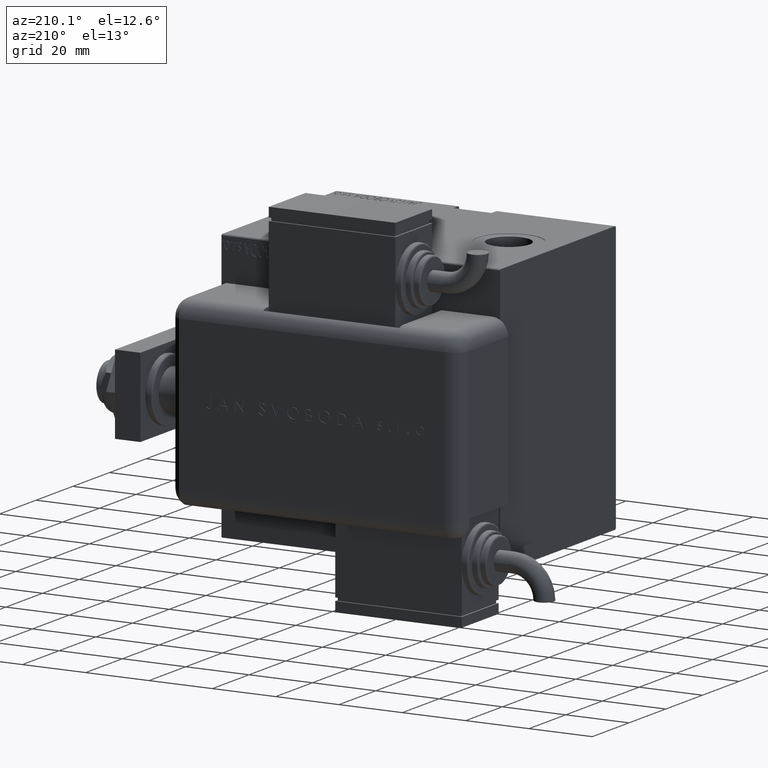
[diagram: clean part render]
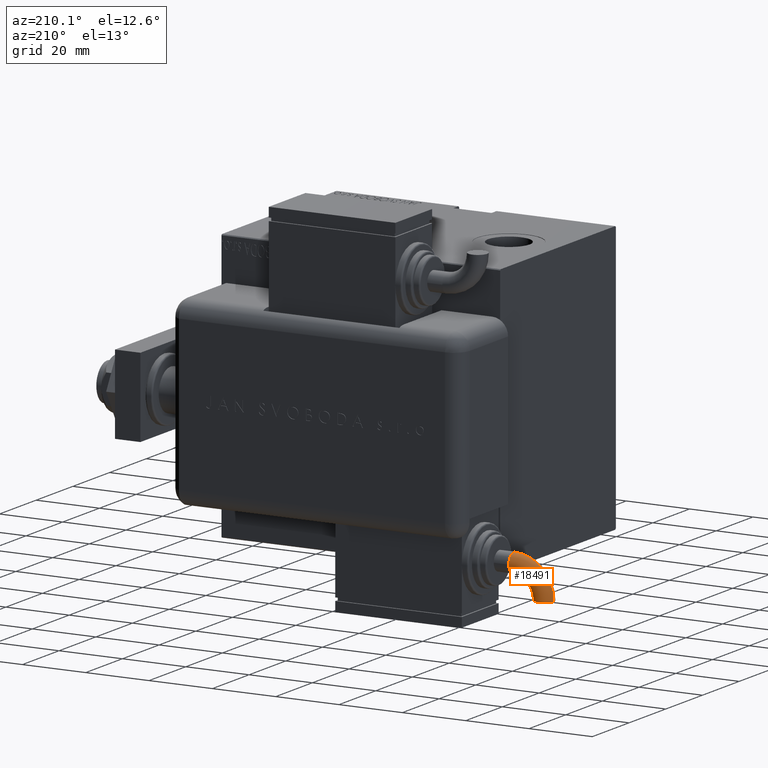
[diagram: same view with one face highlighted and labeled with its STEP entity id]
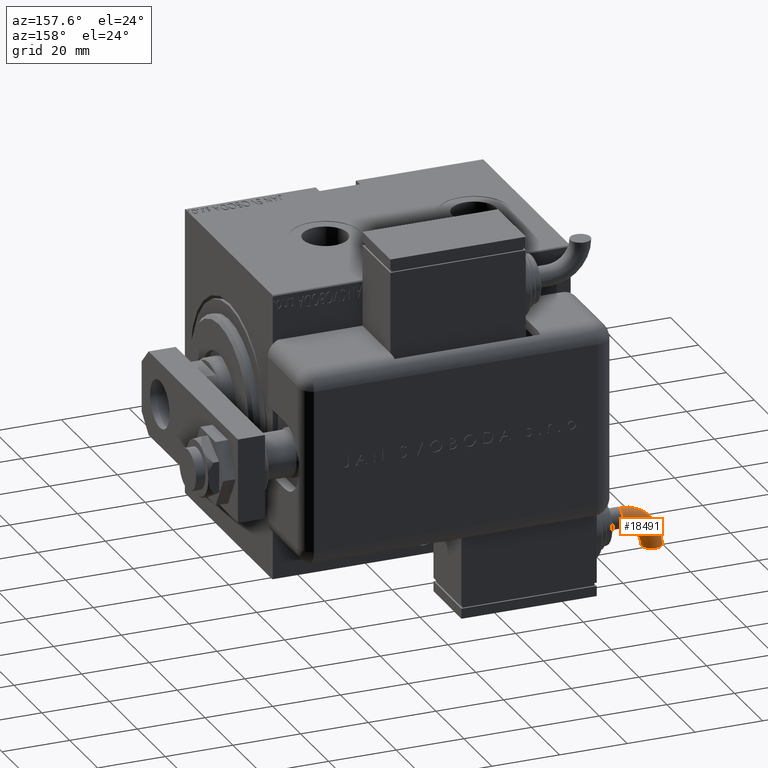
[diagram: same view with one face highlighted and labeled with its STEP entity id]
A machine part, auxiliary view. The second image highlights one B-rep face of the part: STEP entity #18491.
A second angle (auxiliary view) of the same face is appended — the face is thin or edge-on in the first view.
In plain terms, the highlighted toroidal blend (fillet) surface has major radius 9.5072 mm and minor (blend) radius 3 mm.
Its self-contained STEP definition (entity closure, byte-faithful):
#1238 = CARTESIAN_POINT ( 'NONE',  ( -30.75201677704342274, 2.081668171172168513E-14, 0.000000000000000000 ) ) ;
#1368 = CIRCLE ( 'NONE', #7078, 2.999999999999996891 ) ;
#4778 = DIRECTION ( 'NONE',  ( 0.000000000000000000, 0.000000000000000000, 1.000000000000000000 ) ) ;
#5499 = EDGE_CURVE ( 'NONE', #40250, #29120, #1368, .T. ) ;
#7078 = AXIS2_PLACEMENT_3D ( 'NONE', #48885, #57248, #48017 ) ;
#7103 = CIRCLE ( 'NONE', #57340, 2.999999999999996003 ) ;
#7535 = AXIS2_PLACEMENT_3D ( 'NONE', #42102, #4778, #36796 ) ;
#8423 = ORIENTED_EDGE ( 'NONE', *, *, #13872, .T. ) ;
#10028 = DIRECTION ( 'NONE',  ( -1.156482317317872908E-15, 1.000000000000000000, 0.000000000000000000 ) ) ;
#10717 = DIRECTION ( 'NONE',  ( 0.000000000000000000, 0.000000000000000000, 1.000000000000000000 ) ) ;
#10739 = DIRECTION ( 'NONE',  ( 1.000000000000000000, 1.025520576932673761E-15, 0.000000000000000000 ) ) ;
#13073 = CIRCLE ( 'NONE', #47189, 12.50721151927396058 ) ;
#13872 = EDGE_CURVE ( 'NONE', #38892, #40250, #31983, .T. ) ;
#14570 = EDGE_CURVE ( 'NONE', #32648, #29120, #13073, .T. ) ;
#16255 = DIRECTION ( 'NONE',  ( 1.000000000000000000, 0.000000000000000000, 0.000000000000000000 ) ) ;
#18491 = ADVANCED_FACE ( 'NONE', ( #45387 ), #25495, .T. ) ;
#20557 = CARTESIAN_POINT ( 'NONE',  ( -30.75201677704341918, -2.999999999999976463, -3.673940397442056910E-16 ) ) ;
#25409 = CARTESIAN_POINT ( 'NONE',  ( -30.75201677704342274, -9.507211519273942812, -3.673940397442055924E-16 ) ) ;
#25495 = TOROIDAL_SURFACE ( 'NONE', #7535, 9.507211519273964129, 2.999999999999996891 ) ;
#26722 = ORIENTED_EDGE ( 'NONE', *, *, #14570, .F. ) ;
#26784 = ORIENTED_EDGE ( 'NONE', *, *, #5499, .T. ) ;
#29120 = VERTEX_POINT ( 'NONE', #49899 ) ;
#31983 = CIRCLE ( 'NONE', #51857, 6.507211519273966793 ) ;
#32648 = VERTEX_POINT ( 'NONE', #54293 ) ;
#34124 = AXIS2_PLACEMENT_3D ( 'NONE', #41159, #37000, #10028 ) ;
#36796 = DIRECTION ( 'NONE',  ( 1.000000000000000000, 0.000000000000000000, 0.000000000000000000 ) ) ;
#37000 = DIRECTION ( 'NONE',  ( 1.000000000000000000, 1.025520576932673761E-15, 0.000000000000000000 ) ) ;
#37683 = CARTESIAN_POINT ( 'NONE',  ( -30.75201677704342274, -9.507211519273942812, 0.000000000000000000 ) ) ;
#38892 = VERTEX_POINT ( 'NONE', #20557 ) ;
#39148 = DIRECTION ( 'NONE',  ( 1.000000000000000000, 0.000000000000000000, 0.000000000000000000 ) ) ;
#40250 = VERTEX_POINT ( 'NONE', #48660 ) ;
#40928 = EDGE_CURVE ( 'NONE', #46591, #32648, #7103, .T. ) ;
#41159 = CARTESIAN_POINT ( 'NONE',  ( -30.75201677704342274, 2.081668171172168513E-14, 0.000000000000000000 ) ) ;
#42102 = CARTESIAN_POINT ( 'NONE',  ( -30.75201677704342274, -9.507211519273942812, 0.000000000000000000 ) ) ;
#45387 = FACE_OUTER_BOUND ( 'NONE', #55438, .T. ) ;
#46591 = VERTEX_POINT ( 'NONE', #48278 ) ;
#47189 = AXIS2_PLACEMENT_3D ( 'NONE', #37683, #10717, #39148 ) ;
#47735 = ORIENTED_EDGE ( 'NONE', *, *, #58477, .F. ) ;
#48017 = DIRECTION ( 'NONE',  ( -0.9999999999726024713, -7.402363701169985951E-06, 0.000000000000000000 ) ) ;
#48063 = ORIENTED_EDGE ( 'NONE', *, *, #40928, .F. ) ;
#48278 = CARTESIAN_POINT ( 'NONE',  ( -30.75201677704342274, 2.118407575146589373E-14, -2.999999999999997335 ) ) ;
#48660 = CARTESIAN_POINT ( 'NONE',  ( -37.25922829613910636, -9.507259688020280208, -3.673940397551225891E-16 ) ) ;
#48885 = CARTESIAN_POINT ( 'NONE',  ( -40.25922829605691078, -9.507281895111381331, 0.000000000000000000 ) ) ;
#49283 = CIRCLE ( 'NONE', #34124, 2.999999999999996003 ) ;
#49899 = CARTESIAN_POINT ( 'NONE',  ( -43.25922829597471519, -9.507304102202486007, 0.000000000000000000 ) ) ;
#51857 = AXIS2_PLACEMENT_3D ( 'NONE', #25409, #56922, #16255 ) ;
#54293 = CARTESIAN_POINT ( 'NONE',  ( -30.75201677704342629, 3.000000000000017319, 0.000000000000000000 ) ) ;
#55270 = DIRECTION ( 'NONE',  ( -1.156482317317872908E-15, 1.000000000000000000, 0.000000000000000000 ) ) ;
#55438 = EDGE_LOOP ( 'NONE', ( #26722, #48063, #47735, #8423, #26784 ) ) ;
#56922 = DIRECTION ( 'NONE',  ( 0.000000000000000000, 0.000000000000000000, 1.000000000000000000 ) ) ;
#57248 = DIRECTION ( 'NONE',  ( -7.402363701065945741E-06, 0.9999999999726024713, 0.000000000000000000 ) ) ;
#57340 = AXIS2_PLACEMENT_3D ( 'NONE', #1238, #10739, #55270 ) ;
#58477 = EDGE_CURVE ( 'NONE', #38892, #46591, #49283, .T. ) ;